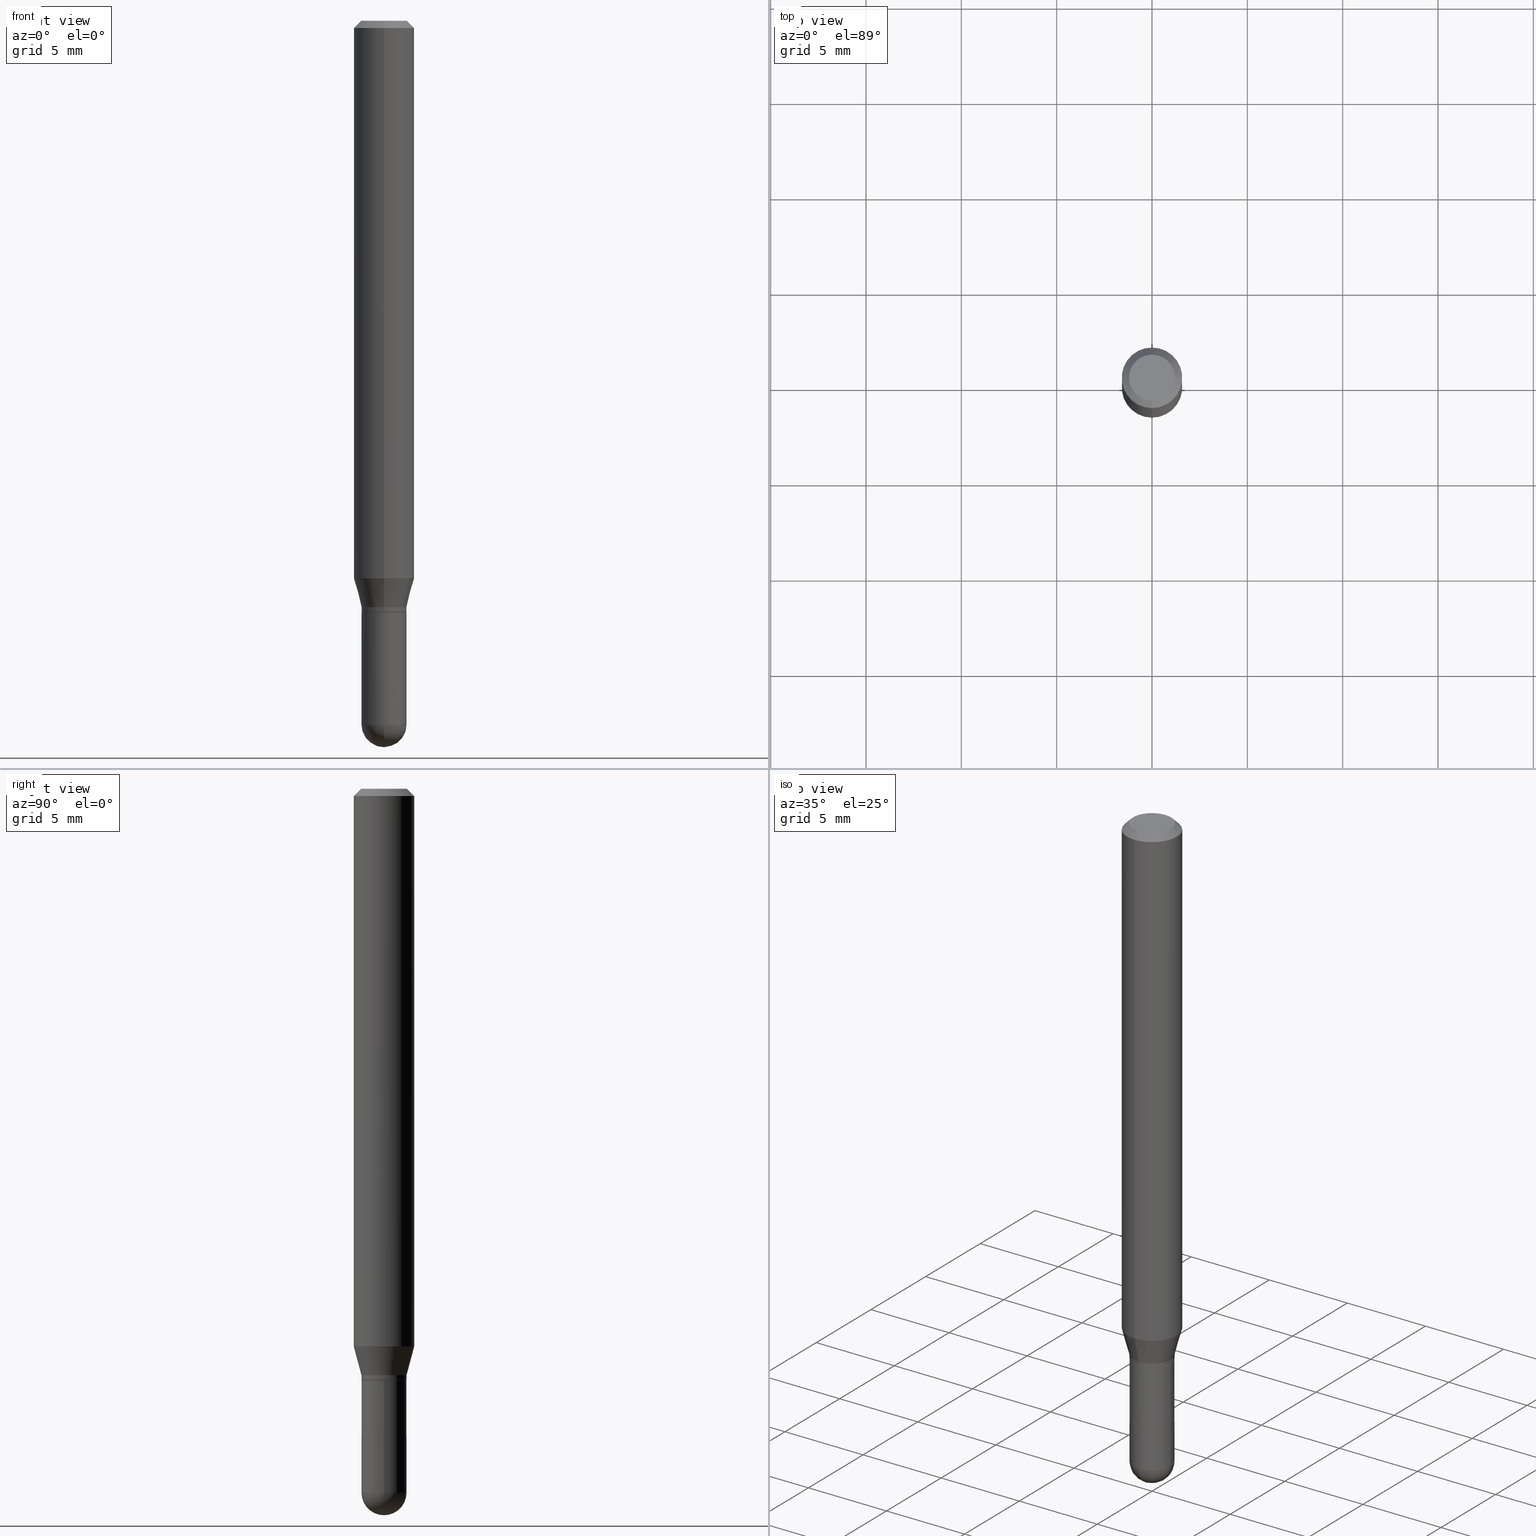
[diagram: canonical four-view strip — front | top / right | iso, engineering-drawing reading convention]
A machine part, canonical four-view strip (front | top / right | iso — engineering-drawing reading convention). The complete STEP part file that produces these views, byte-faithful:
ISO-10303-21;
HEADER;
FILE_DESCRIPTION (( 'STEP AP203' ),
    '1' );
FILE_NAME ('00945.STEP',
    '2024-03-07T19:06:51',
    ( '' ),
    ( '' ),
    'SwSTEP 2.0',
    'SolidWorks 2023',
    '' );
FILE_SCHEMA (( 'CONFIG_CONTROL_DESIGN' ));
ENDSEC;

DATA;
#1 = VERTEX_POINT ( 'NONE', #377 ) ;
#2 = PERSON_AND_ORGANIZATION ( #260, #57 ) ;
#3 = CARTESIAN_POINT ( 'NONE',  ( -3.773273898774340269E-16, -0.04749999999999999362, 1.569953458854816609E-16 ) ) ;
#4 = CC_DESIGN_APPROVAL ( #77, ( #387 ) ) ;
#5 = PERSON_AND_ORGANIZATION ( #260, #57 ) ;
#6 = CARTESIAN_POINT ( 'NONE',  ( 2.815349723061568800E-29, -4.019822575914692345E-15, -1.151287187078898322 ) ) ;
#7 = AXIS2_PLACEMENT_3D ( 'NONE', #32, #263, #426 ) ;
#8 = DIRECTION ( 'NONE',  ( 4.937700262164548042E-15, 0.7071067811865451302, -0.7071067811865499042 ) ) ;
#9 = EDGE_CURVE ( 'NONE', #224, #150, #467, .T. ) ;
#10 = CYLINDRICAL_SURFACE ( 'NONE', #390, 0.04649999999999999967 ) ;
#11 = AXIS2_PLACEMENT_3D ( 'NONE', #14, #457, #176 ) ;
#12 = DIRECTION ( 'NONE',  ( -6.982962677686265922E-15, -1.000000000000000000, 3.483106191921935554E-15 ) ) ;
#13 = CARTESIAN_POINT ( 'NONE',  ( 3.554488909790096218E-29, -5.074868126008512823E-15, -1.453500000000000236 ) ) ;
#14 = CARTESIAN_POINT ( 'NONE',  ( 2.165436816131405591E-46, -3.091861635838232018E-32, -8.855168650699427931E-18 ) ) ;
#15 = CIRCLE ( 'NONE', #378, 0.04650000000000006906 ) ;
#16 = LOCAL_TIME ( 14, 6, 51.00000000000000000, #46 ) ;
#17 = CARTESIAN_POINT ( 'NONE',  ( -3.247077645123822595E-16, -0.04650000000000429484, -1.210999999999999854 ) ) ;
#18 = VERTEX_POINT ( 'NONE', #185 ) ;
#19 = ORIENTED_EDGE ( 'NONE', *, *, #40, .F. ) ;
#20 = FACE_OUTER_BOUND ( 'NONE', #463, .T. ) ;
#21 = ORIENTED_EDGE ( 'NONE', *, *, #295, .F. ) ;
#22 = CC_DESIGN_PERSON_AND_ORGANIZATION_ASSIGNMENT ( #164, #323, ( #434 ) ) ;
#23 = ORIENTED_EDGE ( 'NONE', *, *, #40, .T. ) ;
#24 = AXIS2_PLACEMENT_3D ( 'NONE', #469, #113, #235 ) ;
#25 = AXIS2_PLACEMENT_3D ( 'NONE', #341, #386, #311 ) ;
#26 = AXIS2_PLACEMENT_3D ( 'NONE', #392, #273, #461 ) ;
#27 =( CONVERSION_BASED_UNIT ( 'INCH', #384 ) LENGTH_UNIT ( ) NAMED_UNIT ( #54 ) );
#28 = ORIENTED_EDGE ( 'NONE', *, *, #51, .F. ) ;
#29 = DIRECTION ( 'NONE',  ( -1.000000000000000000, 6.982962677686265922E-15, -4.883557194083111780E-29 ) ) ;
#30 = VERTEX_POINT ( 'NONE', #307 ) ;
#31 = SECURITY_CLASSIFICATION_LEVEL ( 'unclassified' ) ;
#32 = CARTESIAN_POINT ( 'NONE',  ( 3.550512386545411977E-29, -5.080562733624547023E-15, -1.453500000000000236 ) ) ;
#33 = CIRCLE ( 'NONE', #11, 0.04749999999999999362 ) ;
#34 = APPROVAL_STATUS ( 'not_yet_approved' ) ;
#35 = CARTESIAN_POINT ( 'NONE',  ( 2.815349723061568800E-29, -4.019822575914692345E-15, -1.151287187078898322 ) ) ;
#36 = CIRCLE ( 'NONE', #428, 0.04650000000000006212 ) ;
#37 = ORIENTED_EDGE ( 'NONE', *, *, #256, .F. ) ;
#38 = PERSON_AND_ORGANIZATION_ROLE ( 'classification_officer' ) ;
#39 = DIRECTION ( 'NONE',  ( -2.445468806185136597E-29, 3.491481338843145583E-15, 1.000000000000000000 ) ) ;
#40 = EDGE_CURVE ( 'NONE', #193, #150, #48, .T. ) ;
#41 = DATE_AND_TIME ( #194, #405 ) ;
#42 = AXIS2_PLACEMENT_3D ( 'NONE', #447, #444, #363 ) ;
#43 = DIRECTION ( 'NONE',  ( -6.982962677686265922E-15, -1.000000000000000000, 3.491589779709075635E-15 ) ) ;
#44 = EDGE_CURVE ( 'NONE', #427, #69, #216, .T. ) ;
#45 = AXIS2_PLACEMENT_3D ( 'NONE', #346, #337, #109 ) ;
#46 = COORDINATED_UNIVERSAL_TIME_OFFSET ( 5, 0, .BEHIND. ) ;
#47 = ADVANCED_FACE ( 'NONE', ( #475 ), #118, .F. ) ;
#48 = CIRCLE ( 'NONE', #196, 0.06250000000000000000 ) ;
#49 = CARTESIAN_POINT ( 'NONE',  ( 3.247077645124412269E-16, 0.04649999999999573919, -1.221000000000000307 ) ) ;
#50 = ORIENTED_EDGE ( 'NONE', *, *, #317, .T. ) ;
#51 = EDGE_CURVE ( 'NONE', #18, #389, #410, .T. ) ;
#52 = DIRECTION ( 'NONE',  ( 6.982962677686265922E-15, 1.000000000000000000, -3.483106191921935554E-15 ) ) ;
#53 = AXIS2_PLACEMENT_3D ( 'NONE', #251, #484, #205 ) ;
#54 = DIMENSIONAL_EXPONENTS ( 1.000000000000000000, 0.000000000000000000, 0.000000000000000000, 0.000000000000000000, 0.000000000000000000, 0.000000000000000000, 0.000000000000000000 ) ;
#55 = PRODUCT_DEFINITION_SHAPE ( 'NONE', 'NONE',  #387 ) ;
#56 = CARTESIAN_POINT ( 'NONE',  ( 2.165436816131405591E-46, -3.091861635838232018E-32, -8.855168650699427931E-18 ) ) ;
#57 = ORGANIZATION ( 'UNSPECIFIED', 'UNSPECIFIED', '' ) ;
#58 = CARTESIAN_POINT ( 'NONE',  ( -3.247077645124118911E-16, -0.04650000000000006906, 1.623589247564722643E-16 ) ) ;
#59 = CARTESIAN_POINT ( 'NONE',  ( 3.247077645124467489E-16, 0.04649999999999489958, -1.453500000000000458 ) ) ;
#60 = EDGE_CURVE ( 'NONE', #486, #236, #255, .T. ) ;
#61 = CARTESIAN_POINT ( 'NONE',  ( 3.304023721284766101E-16, 0.04649999999999584327, -1.211000000000000076 ) ) ;
#62 = AXIS2_PLACEMENT_3D ( 'NONE', #107, #189, #225 ) ;
#63 = EDGE_CURVE ( 'NONE', #425, #507, #36, .T. ) ;
#64 = CARTESIAN_POINT ( 'NONE',  ( 4.440892098500625669E-16, 0.06250000000000000000, -2.182243612318172272E-16 ) ) ;
#65 = SPHERICAL_SURFACE ( 'NONE', #276, 0.04649999999999995109 ) ;
#66 = VERTEX_POINT ( 'NONE', #324 ) ;
#67 = CARTESIAN_POINT ( 'NONE',  ( 2.984602256987651829E-29, -4.261485326134926891E-15, -1.220500000000000140 ) ) ;
#68 = ORIENTED_EDGE ( 'NONE', *, *, #382, .F. ) ;
#69 = VERTEX_POINT ( 'NONE', #408 ) ;
#70 = AXIS2_PLACEMENT_3D ( 'NONE', #411, #396, #52 ) ;
#71 = DIRECTION ( 'NONE',  ( 6.982962677686265922E-15, 1.000000000000000000, -3.483106191921935554E-15 ) ) ;
#72 = VERTEX_POINT ( 'NONE', #488 ) ;
#73 = VECTOR ( 'NONE', #76, 39.37007874015748143 ) ;
#74 = ORIENTED_EDGE ( 'NONE', *, *, #511, .F. ) ;
#75 = APPLICATION_CONTEXT ( 'configuration controlled 3d designs of mechanical parts and assemblies' ) ;
#76 = DIRECTION ( 'NONE',  ( -2.445393082333184386E-29, 3.491589779709075635E-15, 1.000000000000000000 ) ) ;
#77 = APPROVAL ( #274, 'UNSPECIFIED' ) ;
#78 = LINE ( 'NONE', #302, #253 ) ;
#79 = DIRECTION ( 'NONE',  ( -2.445468806185136597E-29, 3.491481338843145583E-15, 1.000000000000000000 ) ) ;
#80 = PERSON_AND_ORGANIZATION ( #260, #57 ) ;
#81 = ADVANCED_FACE ( 'NONE', ( #353 ), #318, .F. ) ;
#82 = DIRECTION ( 'NONE',  ( -2.445393082333184106E-29, 3.491589779709075635E-15, 1.000000000000000000 ) ) ;
#83 = ORIENTED_EDGE ( 'NONE', *, *, #256, .T. ) ;
#84 = DIRECTION ( 'NONE',  ( 0.000000000000000000, 0.000000000000000000, 1.000000000000000000 ) ) ;
#85 = CARTESIAN_POINT ( 'NONE',  ( 2.961371022705485983E-29, -4.228315223227690775E-15, -1.211000000000000076 ) ) ;
#86 = MECHANICAL_CONTEXT ( 'NONE', #75, 'mechanical' ) ;
#87 = ADVANCED_FACE ( 'NONE', ( #248 ), #10, .T. ) ;
#88 = CARTESIAN_POINT ( 'NONE',  ( 0.000000000000000000, 0.000000000000000000, 0.000000000000000000 ) ) ;
#89 = ORIENTED_EDGE ( 'NONE', *, *, #99, .F. ) ;
#90 = AXIS2_PLACEMENT_3D ( 'NONE', #495, #136, #364 ) ;
#91 = DIRECTION ( 'NONE',  ( -6.982962677686265922E-15, -1.000000000000000000, 4.370956789862821150E-15 ) ) ;
#92 = LOCAL_TIME ( 14, 6, 51.00000000000000000, #487 ) ;
#93 = DIRECTION ( 'NONE',  ( -2.445468806185136597E-29, 3.491481338843145583E-15, 1.000000000000000000 ) ) ;
#94 = ORIENTED_EDGE ( 'NONE', *, *, #44, .F. ) ;
#95 = LINE ( 'NONE', #64, #221 ) ;
#96 = CARTESIAN_POINT ( 'NONE',  ( 3.840629472727447874E-16, 0.04749999999999999362, -1.747056831868805136E-16 ) ) ;
#97 = AXIS2_PLACEMENT_3D ( 'NONE', #239, #84, #119 ) ;
#98 = LINE ( 'NONE', #366, #472 ) ;
#99 = EDGE_CURVE ( 'NONE', #226, #193, #128, .T. ) ;
#100 = FACE_OUTER_BOUND ( 'NONE', #173, .T. ) ;
#101 = EDGE_CURVE ( 'NONE', #18, #66, #283, .T. ) ;
#102 = DIRECTION ( 'NONE',  ( -2.445393082333184106E-29, 3.491589779709075635E-15, 1.000000000000000000 ) ) ;
#103 = AXIS2_PLACEMENT_3D ( 'NONE', #246, #360, #400 ) ;
#104 = CC_DESIGN_APPROVAL ( #198, ( #434 ) ) ;
#105 = ORIENTED_EDGE ( 'NONE', *, *, #192, .F. ) ;
#106 = CC_DESIGN_PERSON_AND_ORGANIZATION_ASSIGNMENT ( #2, #351, ( #434 ) ) ;
#107 = CARTESIAN_POINT ( 'NONE',  ( 0.000000000000000000, 0.000000000000000000, 0.000000000000000000 ) ) ;
#108 = ORIENTED_EDGE ( 'NONE', *, *, #295, .T. ) ;
#109 = DIRECTION ( 'NONE',  ( -6.982962677686266711E-15, -1.000000000000000000, 3.491589779709075635E-15 ) ) ;
#110 = ORIENTED_EDGE ( 'NONE', *, *, #376, .F. ) ;
#111 = ORIENTED_EDGE ( 'NONE', *, *, #328, .F. ) ;
#112 = AXIS2_PLACEMENT_3D ( 'NONE', #490, #93, #440 ) ;
#113 = DIRECTION ( 'NONE',  ( -1.000000000000000000, 7.105427357601001070E-15, -4.926315508542082329E-29 ) ) ;
#114 = ADVANCED_FACE ( 'NONE', ( #162 ), #126, .T. ) ;
#115 = ORIENTED_EDGE ( 'NONE', *, *, #63, .F. ) ;
#116 = ORIENTED_EDGE ( 'NONE', *, *, #135, .T. ) ;
#117 = CARTESIAN_POINT ( 'NONE',  ( 3.554488909790096218E-29, -5.074868126008512823E-15, -1.453500000000000236 ) ) ;
#118 = PLANE ( 'NONE',  #26 ) ;
#119 = DIRECTION ( 'NONE',  ( 1.000000000000000000, 0.000000000000000000, 0.000000000000000000 ) ) ;
#120 = CARTESIAN_POINT ( 'NONE',  ( -0.04649999999999999967, 3.304023721284465841E-16, -2.287304816968531530E-30 ) ) ;
#121 = COORDINATED_UNIVERSAL_TIME_OFFSET ( 5, 0, .BEHIND. ) ;
#122 = DIRECTION ( 'NONE',  ( -6.982962677686265922E-15, -1.000000000000000000, 3.491589779709075635E-15 ) ) ;
#123 = CONICAL_SURFACE ( 'NONE', #504, 0.04650000000000006906, 0.2617993877991501850 ) ;
#124 = EDGE_CURVE ( 'NONE', #30, #375, #15, .T. ) ;
#125 = ORIENTED_EDGE ( 'NONE', *, *, #376, .T. ) ;
#126 = CYLINDRICAL_SURFACE ( 'NONE', #220, 0.06250000000000000000 ) ;
#127 = DATE_AND_TIME ( #197, #92 ) ;
#128 = LINE ( 'NONE', #480, #430 ) ;
#129 = AXIS2_PLACEMENT_3D ( 'NONE', #49, #210, #313 ) ;
#130 = DIRECTION ( 'NONE',  ( -2.445393082333184106E-29, 3.491589779709075635E-15, 1.000000000000000000 ) ) ;
#131 = CIRCLE ( 'NONE', #24, 0.04649999999999995109 ) ;
#132 = DIRECTION ( 'NONE',  ( -2.445393082333184386E-29, 3.491589779709075635E-15, 1.000000000000000000 ) ) ;
#133 = ADVANCED_FACE ( 'NONE', ( #158 ), #202, .F. ) ;
#134 = CARTESIAN_POINT ( 'NONE',  ( 3.668089623499778454E-31, -5.237384669563616460E-17, -0.01500000000000000812 ) ) ;
#135 = EDGE_CURVE ( 'NONE', #69, #427, #159, .T. ) ;
#136 = DIRECTION ( 'NONE',  ( -2.445468806185136597E-29, 3.491481338843145583E-15, 1.000000000000000000 ) ) ;
#137 = ORIENTED_EDGE ( 'NONE', *, *, #325, .F. ) ;
#138 = ADVANCED_BREP_SHAPE_REPRESENTATION ( '00945', ( #404, #403, #97 ), #394 ) ;
#139 = DIRECTION ( 'NONE',  ( -2.445393082333184386E-29, 3.491589779709075635E-15, 1.000000000000000000 ) ) ;
#140 = DIRECTION ( 'NONE',  ( -6.982962677686266711E-15, -1.000000000000000000, 2.937470960929311090E-15 ) ) ;
#141 = PRODUCT ( '00945', '00945', '', ( #86 ) ) ;
#142 = DESIGN_CONTEXT ( 'detailed design', #319, 'design' ) ;
#143 = DIRECTION ( 'NONE',  ( -2.445393082333184106E-29, 3.491589779709075635E-15, 1.000000000000000000 ) ) ;
#144 = CC_DESIGN_PERSON_AND_ORGANIZATION_ASSIGNMENT ( #510, #450, ( #141 ) ) ;
#145 = ORIENTED_EDGE ( 'NONE', *, *, #212, .T. ) ;
#146 = CIRCLE ( 'NONE', #286, 0.04650000000000006906 ) ;
#147 = CARTESIAN_POINT ( 'NONE',  ( 2.985917412352052273E-29, -4.263098714727481320E-15, -1.221000000000000085 ) ) ;
#148 = ORIENTED_EDGE ( 'NONE', *, *, #228, .F. ) ;
#149 = CARTESIAN_POINT ( 'NONE',  ( 3.304023721284470278E-16, 0.04650000000000006906, -1.623589247564722643E-16 ) ) ;
#150 = VERTEX_POINT ( 'NONE', #477 ) ;
#151 = DIRECTION ( 'NONE',  ( 1.000000000000000000, -6.982962677686260400E-15, 0.000000000000000000 ) ) ;
#152 = ORIENTED_EDGE ( 'NONE', *, *, #409, .F. ) ;
#153 = CYLINDRICAL_SURFACE ( 'NONE', #45, 0.04650000000000006906 ) ;
#154 = VECTOR ( 'NONE', #219, 39.37007874015748143 ) ;
#155 = PERSON_AND_ORGANIZATION ( #260, #57 ) ;
#156 = EDGE_LOOP ( 'NONE', ( #464, #188, #28, #148 ) ) ;
#157 = VECTOR ( 'NONE', #441, 39.37007874015748143 ) ;
#158 = FACE_OUTER_BOUND ( 'NONE', #470, .T. ) ;
#159 = CIRCLE ( 'NONE', #42, 0.04599999999999999922 ) ;
#160 = ORIENTED_EDGE ( 'NONE', *, *, #165, .T. ) ;
#161 = DATE_TIME_ROLE ( 'creation_date' ) ;
#162 = FACE_OUTER_BOUND ( 'NONE', #347, .T. ) ;
#163 = CIRCLE ( 'NONE', #460, 0.04649999999999999967 ) ;
#164 = PERSON_AND_ORGANIZATION ( #260, #57 ) ;
#165 = EDGE_CURVE ( 'NONE', #262, #72, #402, .T. ) ;
#166 = CARTESIAN_POINT ( 'NONE',  ( 0.000000000000000000, 0.000000000000000000, 0.000000000000000000 ) ) ;
#167 = CALENDAR_DATE ( 2024, 7, 3 ) ;
#168 = DIRECTION ( 'NONE',  ( -6.982962677686265922E-15, -1.000000000000000000, 4.370956789862821150E-15 ) ) ;
#169 = ORIENTED_EDGE ( 'NONE', *, *, #308, .T. ) ;
#170 = UNCERTAINTY_MEASURE_WITH_UNIT (LENGTH_MEASURE( 1.000000000000000082E-05 ), #27, 'distance_accuracy_value', 'NONE');
#171 = FACE_OUTER_BOUND ( 'NONE', #338, .T. ) ;
#172 = EDGE_CURVE ( 'NONE', #1, #459, #326, .T. ) ;
#173 = EDGE_LOOP ( 'NONE', ( #500, #304, #466, #111 ) ) ;
#174 = DIRECTION ( 'NONE',  ( 6.982962677686265922E-15, 1.000000000000000000, -5.874941921858636379E-15 ) ) ;
#175 = DIRECTION ( 'NONE',  ( 1.000000000000000000, -6.982962677686260400E-15, 0.000000000000000000 ) ) ;
#176 = DIRECTION ( 'NONE',  ( -6.982962677686266711E-15, -1.000000000000000000, 3.491589779709075635E-15 ) ) ;
#177 = CIRCLE ( 'NONE', #468, 0.04649999999999999967 ) ;
#178 = LOCAL_TIME ( 14, 6, 51.00000000000000000, #439 ) ;
#179 = DIRECTION ( 'NONE',  ( -1.807323732225329350E-15, -0.2588190451025180194, 0.9659258262890689783 ) ) ;
#180 = EDGE_CURVE ( 'NONE', #459, #1, #491, .T. ) ;
#181 =( NAMED_UNIT ( * ) SI_UNIT ( $, .STERADIAN. ) SOLID_ANGLE_UNIT ( ) );
#182 = ORIENTED_EDGE ( 'NONE', *, *, #60, .T. ) ;
#183 = CARTESIAN_POINT ( 'NONE',  ( 3.550512386545411977E-29, -5.080562733624547023E-15, -1.453500000000000236 ) ) ;
#184 = ORIENTED_EDGE ( 'NONE', *, *, #135, .F. ) ;
#185 = CARTESIAN_POINT ( 'NONE',  ( -0.04649999999999999967, -4.338581048239549797E-15, -1.453500000000000236 ) ) ;
#186 = CIRCLE ( 'NONE', #342, 0.04749999999999999362 ) ;
#187 = APPLICATION_PROTOCOL_DEFINITION ( 'international standard', 'config_control_design', 1994, #75 ) ;
#188 = ORIENTED_EDGE ( 'NONE', *, *, #478, .T. ) ;
#189 = DIRECTION ( 'NONE',  ( -2.445393082333184106E-29, 3.491589779709075635E-15, 1.000000000000000000 ) ) ;
#190 = ORIENTED_EDGE ( 'NONE', *, *, #9, .T. ) ;
#191 = CARTESIAN_POINT ( 'NONE',  ( 2.961371022705485983E-29, -4.228315223227690775E-15, -1.211000000000000076 ) ) ;
#192 = EDGE_CURVE ( 'NONE', #507, #425, #393, .T. ) ;
#193 = VERTEX_POINT ( 'NONE', #285 ) ;
#194 = CALENDAR_DATE ( 2024, 7, 3 ) ;
#195 = VECTOR ( 'NONE', #132, 39.37007874015748143 ) ;
#196 = AXIS2_PLACEMENT_3D ( 'NONE', #233, #381, #345 ) ;
#197 = CALENDAR_DATE ( 2024, 7, 3 ) ;
#198 = APPROVAL ( #34, 'UNSPECIFIED' ) ;
#199 = DIRECTION ( 'NONE',  ( -2.445393082333184106E-29, 3.491589779709075635E-15, 1.000000000000000000 ) ) ;
#200 = EDGE_LOOP ( 'NONE', ( #431, #190, #125, #89 ) ) ;
#201 = APPROVAL_DATE_TIME ( #127, #348 ) ;
#202 = PLANE ( 'NONE',  #129 ) ;
#203 = ADVANCED_FACE ( 'NONE', ( #275 ), #451, .T. ) ;
#204 = APPROVAL_DATE_TIME ( #41, #198 ) ;
#205 = DIRECTION ( 'NONE',  ( -6.982962677686265922E-15, -1.000000000000000000, 3.491589779709075635E-15 ) ) ;
#206 = CIRCLE ( 'NONE', #372, 0.04649999999999999967 ) ;
#207 = VECTOR ( 'NONE', #139, 39.37007874015748143 ) ;
#208 = ORIENTED_EDGE ( 'NONE', *, *, #124, .T. ) ;
#209 = DATE_AND_TIME ( #479, #178 ) ;
#210 = DIRECTION ( 'NONE',  ( 2.438088387897960049E-29, -3.491481338843145188E-15, -1.000000000000000000 ) ) ;
#211 = DIRECTION ( 'NONE',  ( -6.982962677686266711E-15, -1.000000000000000000, 2.937470960929311090E-15 ) ) ;
#212 = EDGE_CURVE ( 'NONE', #72, #66, #237, .T. ) ;
#213 = CARTESIAN_POINT ( 'NONE',  ( -3.304023721284108388E-16, -0.04650000000000505812, -1.453500000000000014 ) ) ;
#214 = ADVANCED_FACE ( 'NONE', ( #356 ), #290, .T. ) ;
#215 = ORIENTED_EDGE ( 'NONE', *, *, #228, .T. ) ;
#216 = CIRCLE ( 'NONE', #25, 0.04599999999999999922 ) ;
#217 = LINE ( 'NONE', #149, #73 ) ;
#218 = FACE_OUTER_BOUND ( 'NONE', #508, .T. ) ;
#219 = DIRECTION ( 'NONE',  ( 1.839019923739599526E-15, 0.2588190451025248473, 0.9659258262890670910 ) ) ;
#220 = AXIS2_PLACEMENT_3D ( 'NONE', #280, #512, #122 ) ;
#221 = VECTOR ( 'NONE', #413, 39.37007874015748143 ) ;
#222 = CARTESIAN_POINT ( 'NONE',  ( 2.985824953528818158E-29, -4.263231121024781839E-15, -1.221000000000000085 ) ) ;
#223 = ORIENTED_EDGE ( 'NONE', *, *, #478, .F. ) ;
#224 = VERTEX_POINT ( 'NONE', #3 ) ;
#225 = DIRECTION ( 'NONE',  ( -6.982962677686266711E-15, -1.000000000000000000, 3.491589779709075635E-15 ) ) ;
#226 = VERTEX_POINT ( 'NONE', #96 ) ;
#227 = AXIS2_PLACEMENT_3D ( 'NONE', #166, #362, #43 ) ;
#228 = EDGE_CURVE ( 'NONE', #236, #18, #177, .T. ) ;
#229 = APPROVAL_PERSON_ORGANIZATION ( #80, #77, #284 ) ;
#230 = CARTESIAN_POINT ( 'NONE',  ( 3.668089623499778454E-31, -5.237384669563616460E-17, -0.01500000000000000812 ) ) ;
#231 = ADVANCED_FACE ( 'NONE', ( #218 ), #333, .T. ) ;
#232 = ORIENTED_EDGE ( 'NONE', *, *, #101, .T. ) ;
#233 = CARTESIAN_POINT ( 'NONE',  ( 3.668089623499778454E-31, -5.237384669563616460E-17, -0.01500000000000000812 ) ) ;
#234 = CARTESIAN_POINT ( 'NONE',  ( 2.961371022705485983E-29, -4.228315223227690775E-15, -1.211000000000000076 ) ) ;
#235 = DIRECTION ( 'NONE',  ( -7.105427357601001070E-15, -1.000000000000000000, 0.000000000000000000 ) ) ;
#236 = VERTEX_POINT ( 'NONE', #59 ) ;
#237 = CIRCLE ( 'NONE', #112, 0.04649999999999999967 ) ;
#238 = ADVANCED_FACE ( 'NONE', ( #287 ), #422, .T. ) ;
#239 = CARTESIAN_POINT ( 'NONE',  ( 0.000000000000000000, 0.000000000000000000, 0.000000000000000000 ) ) ;
#240 = SECURITY_CLASSIFICATION ( '', '', #31 ) ;
#241 = CC_DESIGN_SECURITY_CLASSIFICATION ( #240, ( #434 ) ) ;
#242 = CARTESIAN_POINT ( 'NONE',  ( 0.04649999999999999967, -3.247077645124114474E-16, 2.267422200745110326E-30 ) ) ;
#243 = EDGE_LOOP ( 'NONE', ( #137, #208, #355, #332 ) ) ;
#244 = DIRECTION ( 'NONE',  ( -6.982962677686265922E-15, -1.000000000000000000, 2.937470960929311484E-15 ) ) ;
#245 = COORDINATED_UNIVERSAL_TIME_OFFSET ( 5, 0, .BEHIND. ) ;
#246 = CARTESIAN_POINT ( 'NONE',  ( 2.984602256987651829E-29, -4.261485326134926891E-15, -1.220500000000000140 ) ) ;
#247 = EDGE_LOOP ( 'NONE', ( #482, #303 ) ) ;
#248 = FACE_OUTER_BOUND ( 'NONE', #322, .T. ) ;
#249 = VECTOR ( 'NONE', #179, 39.37007874015749564 ) ;
#250 = ADVANCED_FACE ( 'NONE', ( #171 ), #329, .T. ) ;
#251 = CARTESIAN_POINT ( 'NONE',  ( 2.985824953528818158E-29, -4.263231121024781839E-15, -1.221000000000000085 ) ) ;
#252 = DIRECTION ( 'NONE',  ( -2.445393082333184106E-29, 3.491589779709075635E-15, 1.000000000000000000 ) ) ;
#253 = VECTOR ( 'NONE', #465, 39.37007874015748143 ) ;
#254 = DIRECTION ( 'NONE',  ( -4.937700262164674260E-15, -0.7071067811865632269, 0.7071067811865319186 ) ) ;
#255 = CIRCLE ( 'NONE', #7, 0.04649999999999995109 ) ;
#256 = EDGE_CURVE ( 'NONE', #69, #507, #98, .T. ) ;
#257 = DIRECTION ( 'NONE',  ( -2.445393082333184106E-29, 3.491589779709075635E-15, 1.000000000000000000 ) ) ;
#258 = DIRECTION ( 'NONE',  ( -6.982962677686265133E-15, -1.000000000000000000, 2.969399993113329585E-15 ) ) ;
#259 = APPROVAL_PERSON_ORGANIZATION ( #489, #198, #443 ) ;
#260 = PERSON ( 'UNSPECIFIED', 'UNSPECIFIED', 'UNSPECIFIED', ('UNSPECIFIED'), ('UNSPECIFIED'), ('UNSPECIFIED') ) ;
#261 = CYLINDRICAL_SURFACE ( 'NONE', #62, 0.04650000000000006906 ) ;
#262 = VERTEX_POINT ( 'NONE', #419 ) ;
#263 = DIRECTION ( 'NONE',  ( 1.000000000000000000, -6.982962677686265922E-15, 4.883557194083112340E-29 ) ) ;
#264 = EDGE_LOOP ( 'NONE', ( #445, #297, #83, #115 ) ) ;
#265 = CC_DESIGN_DATE_AND_TIME_ASSIGNMENT ( #398, #161, ( #387 ) ) ;
#266 = CARTESIAN_POINT ( 'NONE',  ( 3.666214947655362494E-29, -5.240069312072735277E-15, -1.500000000000000222 ) ) ;
#267 = ORIENTED_EDGE ( 'NONE', *, *, #511, .T. ) ;
#268 = ORIENTED_EDGE ( 'NONE', *, *, #165, .F. ) ;
#269 = AXIS2_PLACEMENT_3D ( 'NONE', #458, #102, #258 ) ;
#270 = DIRECTION ( 'NONE',  ( 2.445393082333184106E-29, -3.491589779709075635E-15, -1.000000000000000000 ) ) ;
#271 = ORIENTED_EDGE ( 'NONE', *, *, #409, .T. ) ;
#272 = DIRECTION ( 'NONE',  ( 1.000000000000000000, -6.982962677686260400E-15, 0.000000000000000000 ) ) ;
#273 = DIRECTION ( 'NONE',  ( 2.445393082333183826E-29, -3.491589779709075635E-15, -1.000000000000000000 ) ) ;
#274 = APPROVAL_STATUS ( 'not_yet_approved' ) ;
#275 = FACE_OUTER_BOUND ( 'NONE', #361, .T. ) ;
#276 = AXIS2_PLACEMENT_3D ( 'NONE', #183, #29, #502 ) ;
#277 = DIRECTION ( 'NONE',  ( -2.445468806185136877E-29, 3.491481338843145188E-15, 1.000000000000000000 ) ) ;
#278 = ORIENTED_EDGE ( 'NONE', *, *, #485, .F. ) ;
#279 = CALENDAR_DATE ( 2024, 7, 3 ) ;
#280 = CARTESIAN_POINT ( 'NONE',  ( 0.000000000000000000, 0.000000000000000000, 0.000000000000000000 ) ) ;
#281 = ORIENTED_EDGE ( 'NONE', *, *, #172, .T. ) ;
#282 = CC_DESIGN_PERSON_AND_ORGANIZATION_ASSIGNMENT ( #312, #38, ( #240 ) ) ;
#283 = LINE ( 'NONE', #120, #157 ) ;
#284 = APPROVAL_ROLE ( '' ) ;
#285 = CARTESIAN_POINT ( 'NONE',  ( 4.440892098500909166E-16, 0.06249999999999995143, -0.01500000000000022669 ) ) ;
#286 = AXIS2_PLACEMENT_3D ( 'NONE', #234, #143, #432 ) ;
#287 = FACE_OUTER_BOUND ( 'NONE', #264, .T. ) ;
#288 = CC_DESIGN_PERSON_AND_ORGANIZATION_ASSIGNMENT ( #155, #395, ( #387 ) ) ;
#289 = FACE_OUTER_BOUND ( 'NONE', #156, .T. ) ;
#290 = CONICAL_SURFACE ( 'NONE', #70, 0.06250000000000000000, 0.7853981633974483900 ) ;
#291 = LOCAL_TIME ( 14, 6, 51.00000000000000000, #245 ) ;
#292 = PRODUCT_RELATED_PRODUCT_CATEGORY ( 'detail', '', ( #141 ) ) ;
#293 = DIRECTION ( 'NONE',  ( -2.445468806185136597E-29, 3.491481338843145583E-15, 1.000000000000000000 ) ) ;
#294 = DIRECTION ( 'NONE',  ( -1.000000000000000000, 6.982962677686265922E-15, -4.883557194083111780E-29 ) ) ;
#295 = EDGE_CURVE ( 'NONE', #262, #236, #206, .T. ) ;
#296 = DIRECTION ( 'NONE',  ( -2.445393082333184106E-29, 3.491589779709075635E-15, 1.000000000000000000 ) ) ;
#297 = ORIENTED_EDGE ( 'NONE', *, *, #44, .T. ) ;
#298 = CIRCLE ( 'NONE', #350, 0.04649999999999999967 ) ;
#299 = EDGE_LOOP ( 'NONE', ( #442, #406, #380, #23 ) ) ;
#300 = DIRECTION ( 'NONE',  ( -4.851104656540964275E-15, -0.7071067811865500152, -0.7071067811865450192 ) ) ;
#301 = EDGE_CURVE ( 'NONE', #226, #224, #33, .T. ) ;
#302 = CARTESIAN_POINT ( 'NONE',  ( 3.268496584496758595E-16, 0.04599999999999573874, -1.221000000000000307 ) ) ;
#303 = ORIENTED_EDGE ( 'NONE', *, *, #354, .T. ) ;
#304 = ORIENTED_EDGE ( 'NONE', *, *, #325, .T. ) ;
#305 =( NAMED_UNIT ( * ) PLANE_ANGLE_UNIT ( ) SI_UNIT ( $, .RADIAN. ) );
#306 = ORIENTED_EDGE ( 'NONE', *, *, #51, .T. ) ;
#307 = CARTESIAN_POINT ( 'NONE',  ( 3.872457909892837387E-16, 0.04649999999999584327, -1.211000000000000076 ) ) ;
#308 = EDGE_CURVE ( 'NONE', #507, #375, #334, .T. ) ;
#309 = APPROVAL_PERSON_ORGANIZATION ( #5, #348, #476 ) ;
#310 =( LENGTH_UNIT ( ) NAMED_UNIT ( * ) SI_UNIT ( $, .METRE. ) );
#311 = DIRECTION ( 'NONE',  ( -6.982962677686265133E-15, -1.000000000000000000, 2.969399993113329585E-15 ) ) ;
#312 = PERSON_AND_ORGANIZATION ( #260, #57 ) ;
#313 = DIRECTION ( 'NONE',  ( -1.000000000000000000, 6.982962677686265922E-15, -4.876176775795935793E-29 ) ) ;
#314 = ADVANCED_FACE ( 'NONE', ( #100 ), #123, .T. ) ;
#315 = DIRECTION ( 'NONE',  ( -2.445393082333184106E-29, 3.491589779709075635E-15, 1.000000000000000000 ) ) ;
#316 = ORIENTED_EDGE ( 'NONE', *, *, #192, .T. ) ;
#317 = EDGE_CURVE ( 'NONE', #459, #150, #420, .T. ) ;
#318 = PLANE ( 'NONE',  #53 ) ;
#319 = APPLICATION_CONTEXT ( 'configuration controlled 3d designs of mechanical parts and assemblies' ) ;
#320 = APPROVAL_STATUS ( 'not_yet_approved' ) ;
#321 = DIRECTION ( 'NONE',  ( 1.000000000000000000, -6.982962677686267499E-15, 4.876176775795936353E-29 ) ) ;
#322 = EDGE_LOOP ( 'NONE', ( #503, #306, #433, #160, #74 ) ) ;
#323 = PERSON_AND_ORGANIZATION_ROLE ( 'design_supplier' ) ;
#324 = CARTESIAN_POINT ( 'NONE',  ( -0.04649999999999999967, -4.338581048239549797E-15, -1.221000000000000085 ) ) ;
#325 = EDGE_CURVE ( 'NONE', #30, #1, #493, .T. ) ;
#326 = CIRCLE ( 'NONE', #339, 0.06250000000000000000 ) ;
#327 = ORIENTED_EDGE ( 'NONE', *, *, #63, .T. ) ;
#328 = EDGE_CURVE ( 'NONE', #375, #459, #371, .T. ) ;
#329 = SPHERICAL_SURFACE ( 'NONE', #481, 0.04649999999999995109 ) ;
#330 = AXIS2_PLACEMENT_3D ( 'NONE', #230, #270, #71 ) ;
#331 = CARTESIAN_POINT ( 'NONE',  ( 2.961371022705485983E-29, -4.228315223227690775E-15, -1.211000000000000076 ) ) ;
#332 = ORIENTED_EDGE ( 'NONE', *, *, #172, .F. ) ;
#333 = CYLINDRICAL_SURFACE ( 'NONE', #90, 0.04649999999999999967 ) ;
#334 = LINE ( 'NONE', #58, #207 ) ;
#335 = AXIS2_PLACEMENT_3D ( 'NONE', #222, #374, #456 ) ;
#336 = FACE_OUTER_BOUND ( 'NONE', #397, .T. ) ;
#337 = DIRECTION ( 'NONE',  ( -2.445393082333184106E-29, 3.491589779709075635E-15, 1.000000000000000000 ) ) ;
#338 = EDGE_LOOP ( 'NONE', ( #223, #182, #21, #278 ) ) ;
#339 = AXIS2_PLACEMENT_3D ( 'NONE', #35, #199, #91 ) ;
#340 = DIRECTION ( 'NONE',  ( -2.445468806185136597E-29, 3.491481338843145583E-15, 1.000000000000000000 ) ) ;
#341 = CARTESIAN_POINT ( 'NONE',  ( 2.985824953528818158E-29, -4.263231121024781839E-15, -1.221000000000000085 ) ) ;
#342 = AXIS2_PLACEMENT_3D ( 'NONE', #56, #416, #453 ) ;
#343 = CARTESIAN_POINT ( 'NONE',  ( 3.304023721284766101E-16, 0.04649999999999577388, -1.220500000000000362 ) ) ;
#344 = ORIENTED_EDGE ( 'NONE', *, *, #414, .F. ) ;
#345 = DIRECTION ( 'NONE',  ( -6.982962677686265922E-15, -1.000000000000000000, 3.483106191921935554E-15 ) ) ;
#346 = CARTESIAN_POINT ( 'NONE',  ( 0.000000000000000000, 0.000000000000000000, 0.000000000000000000 ) ) ;
#347 = EDGE_LOOP ( 'NONE', ( #68, #281, #50, #19 ) ) ;
#348 = APPROVAL ( #320, 'UNSPECIFIED' ) ;
#349 = VECTOR ( 'NONE', #277, 39.37007874015748143 ) ;
#350 = AXIS2_PLACEMENT_3D ( 'NONE', #117, #340, #272 ) ;
#351 = PERSON_AND_ORGANIZATION_ROLE ( 'creator' ) ;
#352 = SHAPE_DEFINITION_REPRESENTATION ( #55, #138 ) ;
#353 = FACE_OUTER_BOUND ( 'NONE', #494, .T. ) ;
#354 = EDGE_CURVE ( 'NONE', #224, #226, #186, .T. ) ;
#355 = ORIENTED_EDGE ( 'NONE', *, *, #328, .T. ) ;
#356 = FACE_OUTER_BOUND ( 'NONE', #200, .T. ) ;
#357 = EDGE_LOOP ( 'NONE', ( #152, #327, #169, #449 ) ) ;
#358 = DATE_TIME_ROLE ( 'classification_date' ) ;
#359 = CONICAL_SURFACE ( 'NONE', #330, 0.06250000000000000000, 0.7853981633974483900 ) ;
#360 = DIRECTION ( 'NONE',  ( -2.445393082333184106E-29, 3.491589779709075635E-15, 1.000000000000000000 ) ) ;
#361 = EDGE_LOOP ( 'NONE', ( #415, #367, #110, #385 ) ) ;
#362 = DIRECTION ( 'NONE',  ( -2.445393082333184106E-29, 3.491589779709075635E-15, 1.000000000000000000 ) ) ;
#363 = DIRECTION ( 'NONE',  ( -6.982962677686265133E-15, -1.000000000000000000, 2.969399993113329585E-15 ) ) ;
#364 = DIRECTION ( 'NONE',  ( 1.000000000000000000, -6.982962677686267499E-15, 4.876176775795936353E-29 ) ) ;
#365 = AXIS2_PLACEMENT_3D ( 'NONE', #134, #252, #12 ) ;
#366 = CARTESIAN_POINT ( 'NONE',  ( -3.212162831735383649E-16, -0.04600000000000425970, -1.221000000000000085 ) ) ;
#367 = ORIENTED_EDGE ( 'NONE', *, *, #382, .T. ) ;
#368 = DIRECTION ( 'NONE',  ( 1.000000000000000000, -6.982962677686260400E-15, 0.000000000000000000 ) ) ;
#369 = CC_DESIGN_DATE_AND_TIME_ASSIGNMENT ( #209, #358, ( #240 ) ) ;
#370 = ADVANCED_FACE ( 'NONE', ( #336 ), #448, .T. ) ;
#371 = LINE ( 'NONE', #17, #249 ) ;
#372 = AXIS2_PLACEMENT_3D ( 'NONE', #492, #454, #368 ) ;
#373 = VECTOR ( 'NONE', #300, 39.37007874015748143 ) ;
#374 = DIRECTION ( 'NONE',  ( -2.445393082333184106E-29, 3.491589779709075635E-15, 1.000000000000000000 ) ) ;
#375 = VERTEX_POINT ( 'NONE', #421 ) ;
#376 = EDGE_CURVE ( 'NONE', #150, #193, #498, .T. ) ;
#377 = CARTESIAN_POINT ( 'NONE',  ( 4.440892098500906207E-16, 0.06249999999999597544, -1.151287187078898766 ) ) ;
#378 = AXIS2_PLACEMENT_3D ( 'NONE', #85, #130, #211 ) ;
#379 = CARTESIAN_POINT ( 'NONE',  ( -4.364351673553635169E-16, -0.06250000000000402456, -1.151287187078898100 ) ) ;
#380 = ORIENTED_EDGE ( 'NONE', *, *, #99, .T. ) ;
#381 = DIRECTION ( 'NONE',  ( -2.445393082333184106E-29, 3.491589779709075635E-15, 1.000000000000000000 ) ) ;
#382 = EDGE_CURVE ( 'NONE', #1, #193, #95, .T. ) ;
#383 = CLOSED_SHELL ( 'NONE', ( #452, #370, #214, #203, #314, #436, #114, #501, #47, #81, #238, #446 ) ) ;
#384 = LENGTH_MEASURE_WITH_UNIT ( LENGTH_MEASURE( 0.02539999999999999897 ), #310 );
#385 = ORIENTED_EDGE ( 'NONE', *, *, #317, .F. ) ;
#386 = DIRECTION ( 'NONE',  ( -2.445393082333184106E-29, 3.491589779709075635E-15, 1.000000000000000000 ) ) ;
#387 = PRODUCT_DEFINITION ( 'UNKNOWN', '', #434, #142 ) ;
#388 = DIRECTION ( 'NONE',  ( -2.445468806185136597E-29, 3.491481338843145583E-15, 1.000000000000000000 ) ) ;
#389 = VERTEX_POINT ( 'NONE', #213 ) ;
#390 = AXIS2_PLACEMENT_3D ( 'NONE', #88, #39, #321 ) ;
#391 = APPROVAL_DATE_TIME ( #483, #77 ) ;
#392 = CARTESIAN_POINT ( 'NONE',  ( 3.316907271900976096E-16, 0.04749999999999999362, -1.702780988615308066E-16 ) ) ;
#393 = CIRCLE ( 'NONE', #103, 0.04650000000000006212 ) ;
#394 =( GEOMETRIC_REPRESENTATION_CONTEXT ( 3 ) GLOBAL_UNCERTAINTY_ASSIGNED_CONTEXT ( ( #170 ) ) GLOBAL_UNIT_ASSIGNED_CONTEXT ( ( #27, #305, #181 ) ) REPRESENTATION_CONTEXT ( 'NONE', 'WORKASPACE' ) );
#395 = PERSON_AND_ORGANIZATION_ROLE ( 'creator' ) ;
#396 = DIRECTION ( 'NONE',  ( 2.445393082333184106E-29, -3.491589779709075635E-15, -1.000000000000000000 ) ) ;
#397 = EDGE_LOOP ( 'NONE', ( #116, #509, #105, #37 ) ) ;
#398 = DATE_AND_TIME ( #279, #291 ) ;
#399 = ADVANCED_FACE ( 'NONE', ( #289 ), #65, .T. ) ;
#400 = DIRECTION ( 'NONE',  ( -6.982962677686265922E-15, -1.000000000000000000, 2.937470960929311484E-15 ) ) ;
#401 = APPLICATION_PROTOCOL_DEFINITION ( 'international standard', 'config_control_design', 1994, #319 ) ;
#402 = LINE ( 'NONE', #242, #349 ) ;
#403 = MANIFOLD_SOLID_BREP ( 'Body-Move/Copy2[2]', #383 ) ;
#404 = MANIFOLD_SOLID_BREP ( 'Body-Move/Copy2[1]', #418 ) ;
#405 = LOCAL_TIME ( 14, 6, 51.00000000000000000, #121 ) ;
#406 = ORIENTED_EDGE ( 'NONE', *, *, #301, .F. ) ;
#407 = CC_DESIGN_APPROVAL ( #348, ( #240 ) ) ;
#408 = CARTESIAN_POINT ( 'NONE',  ( -3.212162831735383649E-16, -0.04600000000000425970, -1.221000000000000085 ) ) ;
#409 = EDGE_CURVE ( 'NONE', #425, #30, #217, .T. ) ;
#410 = CIRCLE ( 'NONE', #423, 0.04649999999999999967 ) ;
#411 = CARTESIAN_POINT ( 'NONE',  ( 3.668089623499778454E-31, -5.237384669563616460E-17, -0.01500000000000000812 ) ) ;
#412 = ORIENTED_EDGE ( 'NONE', *, *, #212, .F. ) ;
#413 = DIRECTION ( 'NONE',  ( -2.445393082333184386E-29, 3.491589779709075635E-15, 1.000000000000000000 ) ) ;
#414 = EDGE_CURVE ( 'NONE', #375, #30, #146, .T. ) ;
#415 = ORIENTED_EDGE ( 'NONE', *, *, #180, .T. ) ;
#416 = DIRECTION ( 'NONE',  ( -2.445393082333184106E-29, 3.491589779709075635E-15, 1.000000000000000000 ) ) ;
#417 = CONICAL_SURFACE ( 'NONE', #496, 0.04650000000000006906, 0.2617993877991501850 ) ;
#418 = CLOSED_SHELL ( 'NONE', ( #231, #399, #133, #250, #87 ) ) ;
#419 = CARTESIAN_POINT ( 'NONE',  ( 0.04649999999999999967, -4.993691184880407779E-15, -1.453500000000000236 ) ) ;
#420 = LINE ( 'NONE', #499, #195 ) ;
#421 = CARTESIAN_POINT ( 'NONE',  ( -3.247077645123822595E-16, -0.04650000000000429484, -1.210999999999999854 ) ) ;
#422 = CONICAL_SURFACE ( 'NONE', #335, 0.04599999999999999922, 0.7853981633974739252 ) ;
#423 = AXIS2_PLACEMENT_3D ( 'NONE', #438, #79, #151 ) ;
#424 = DIRECTION ( 'NONE',  ( 1.000000000000000000, -6.982962677686260400E-15, 0.000000000000000000 ) ) ;
#425 = VERTEX_POINT ( 'NONE', #343 ) ;
#426 = DIRECTION ( 'NONE',  ( 6.982962677686265133E-15, 1.000000000000000000, 0.000000000000000000 ) ) ;
#427 = VERTEX_POINT ( 'NONE', #474 ) ;
#428 = AXIS2_PLACEMENT_3D ( 'NONE', #67, #82, #244 ) ;
#429 = FACE_OUTER_BOUND ( 'NONE', #243, .T. ) ;
#430 = VECTOR ( 'NONE', #8, 39.37007874015748143 ) ;
#431 = ORIENTED_EDGE ( 'NONE', *, *, #354, .F. ) ;
#432 = DIRECTION ( 'NONE',  ( -6.982962677686266711E-15, -1.000000000000000000, 2.937470960929311090E-15 ) ) ;
#433 = ORIENTED_EDGE ( 'NONE', *, *, #485, .T. ) ;
#434 = PRODUCT_DEFINITION_FORMATION_WITH_SPECIFIED_SOURCE ( 'ANY', '', #141, .NOT_KNOWN. ) ;
#435 = FACE_OUTER_BOUND ( 'NONE', #357, .T. ) ;
#436 = ADVANCED_FACE ( 'NONE', ( #429 ), #417, .T. ) ;
#437 = CARTESIAN_POINT ( 'NONE',  ( -3.247077645123820623E-16, -0.04650000000000435035, -1.220499999999999918 ) ) ;
#438 = CARTESIAN_POINT ( 'NONE',  ( 3.554488909790096218E-29, -5.074868126008512823E-15, -1.453500000000000236 ) ) ;
#439 = COORDINATED_UNIVERSAL_TIME_OFFSET ( 5, 0, .BEHIND. ) ;
#440 = DIRECTION ( 'NONE',  ( 1.000000000000000000, -6.982962677686260400E-15, 0.000000000000000000 ) ) ;
#441 = DIRECTION ( 'NONE',  ( -2.445468806185136877E-29, 3.491481338843145188E-15, 1.000000000000000000 ) ) ;
#442 = ORIENTED_EDGE ( 'NONE', *, *, #9, .F. ) ;
#443 = APPROVAL_ROLE ( '' ) ;
#444 = DIRECTION ( 'NONE',  ( -2.445393082333184106E-29, 3.491589779709075635E-15, 1.000000000000000000 ) ) ;
#445 = ORIENTED_EDGE ( 'NONE', *, *, #473, .F. ) ;
#446 = ADVANCED_FACE ( 'NONE', ( #435 ), #153, .T. ) ;
#447 = CARTESIAN_POINT ( 'NONE',  ( 2.985824953528818158E-29, -4.263231121024781839E-15, -1.221000000000000085 ) ) ;
#448 = CONICAL_SURFACE ( 'NONE', #269, 0.04599999999999999922, 0.7853981633974739252 ) ;
#449 = ORIENTED_EDGE ( 'NONE', *, *, #124, .F. ) ;
#450 = PERSON_AND_ORGANIZATION_ROLE ( 'design_owner' ) ;
#451 = CYLINDRICAL_SURFACE ( 'NONE', #227, 0.06250000000000000000 ) ;
#452 = ADVANCED_FACE ( 'NONE', ( #20 ), #261, .T. ) ;
#453 = DIRECTION ( 'NONE',  ( -6.982962677686266711E-15, -1.000000000000000000, 3.491589779709075635E-15 ) ) ;
#454 = DIRECTION ( 'NONE',  ( -2.445468806185136597E-29, 3.491481338843145583E-15, 1.000000000000000000 ) ) ;
#455 = AXIS2_PLACEMENT_3D ( 'NONE', #6, #315, #168 ) ;
#456 = DIRECTION ( 'NONE',  ( -6.982962677686265133E-15, -1.000000000000000000, 2.969399993113329585E-15 ) ) ;
#457 = DIRECTION ( 'NONE',  ( -2.445393082333184106E-29, 3.491589779709075635E-15, 1.000000000000000000 ) ) ;
#458 = CARTESIAN_POINT ( 'NONE',  ( 2.985824953528818158E-29, -4.263231121024781839E-15, -1.221000000000000085 ) ) ;
#459 = VERTEX_POINT ( 'NONE', #379 ) ;
#460 = AXIS2_PLACEMENT_3D ( 'NONE', #147, #388, #424 ) ;
#461 = DIRECTION ( 'NONE',  ( 6.982962677686265922E-15, 1.000000000000000000, -3.491589779709075635E-15 ) ) ;
#462 = DIRECTION ( 'NONE',  ( -6.982962677686266711E-15, -1.000000000000000000, 2.937470960929311090E-15 ) ) ;
#463 = EDGE_LOOP ( 'NONE', ( #316, #271, #344, #505 ) ) ;
#464 = ORIENTED_EDGE ( 'NONE', *, *, #60, .F. ) ;
#465 = DIRECTION ( 'NONE',  ( 5.024295867788190974E-15, 0.7071067811865681119, 0.7071067811865270336 ) ) ;
#466 = ORIENTED_EDGE ( 'NONE', *, *, #180, .F. ) ;
#467 = LINE ( 'NONE', #471, #373 ) ;
#468 = AXIS2_PLACEMENT_3D ( 'NONE', #13, #293, #175 ) ;
#469 = CARTESIAN_POINT ( 'NONE',  ( 3.550512386545411977E-29, -5.080562733624547023E-15, -1.453500000000000236 ) ) ;
#470 = EDGE_LOOP ( 'NONE', ( #145, #267 ) ) ;
#471 = CARTESIAN_POINT ( 'NONE',  ( -4.287811248607203282E-16, -0.06250000000000005551, -0.01499999999999979128 ) ) ;
#472 = VECTOR ( 'NONE', #254, 39.37007874015748143 ) ;
#473 = EDGE_CURVE ( 'NONE', #427, #425, #78, .T. ) ;
#474 = CARTESIAN_POINT ( 'NONE',  ( 3.286260152890763087E-16, 0.04599999999999573874, -1.221000000000000307 ) ) ;
#475 = FACE_OUTER_BOUND ( 'NONE', #247, .T. ) ;
#476 = APPROVAL_ROLE ( '' ) ;
#477 = CARTESIAN_POINT ( 'NONE',  ( -4.364351673553912750E-16, -0.06250000000000005551, -0.01499999999999979128 ) ) ;
#478 = EDGE_CURVE ( 'NONE', #486, #389, #131, .T. ) ;
#479 = CALENDAR_DATE ( 2024, 7, 3 ) ;
#480 = CARTESIAN_POINT ( 'NONE',  ( 4.364351673553919652E-16, 0.06249999999999995143, -0.01500000000000022669 ) ) ;
#481 = AXIS2_PLACEMENT_3D ( 'NONE', #497, #294, #174 ) ;
#482 = ORIENTED_EDGE ( 'NONE', *, *, #301, .T. ) ;
#483 = DATE_AND_TIME ( #167, #16 ) ;
#484 = DIRECTION ( 'NONE',  ( -2.445393082333183826E-29, 3.491589779709075635E-15, 1.000000000000000000 ) ) ;
#485 = EDGE_CURVE ( 'NONE', #389, #262, #298, .T. ) ;
#486 = VERTEX_POINT ( 'NONE', #266 ) ;
#487 = COORDINATED_UNIVERSAL_TIME_OFFSET ( 5, 0, .BEHIND. ) ;
#488 = CARTESIAN_POINT ( 'NONE',  ( 0.04649999999999999967, -4.587806479239892817E-15, -1.221000000000000085 ) ) ;
#489 = PERSON_AND_ORGANIZATION ( #260, #57 ) ;
#490 = CARTESIAN_POINT ( 'NONE',  ( 2.985917412352052273E-29, -4.263098714727481320E-15, -1.221000000000000085 ) ) ;
#491 = CIRCLE ( 'NONE', #455, 0.06250000000000000000 ) ;
#492 = CARTESIAN_POINT ( 'NONE',  ( 3.554488909790096218E-29, -5.074868126008512823E-15, -1.453500000000000236 ) ) ;
#493 = LINE ( 'NONE', #61, #154 ) ;
#494 = EDGE_LOOP ( 'NONE', ( #184, #94 ) ) ;
#495 = CARTESIAN_POINT ( 'NONE',  ( 0.000000000000000000, 0.000000000000000000, 0.000000000000000000 ) ) ;
#496 = AXIS2_PLACEMENT_3D ( 'NONE', #191, #296, #462 ) ;
#497 = CARTESIAN_POINT ( 'NONE',  ( 3.550512386545411977E-29, -5.080562733624547023E-15, -1.453500000000000236 ) ) ;
#498 = CIRCLE ( 'NONE', #365, 0.06250000000000000000 ) ;
#499 = CARTESIAN_POINT ( 'NONE',  ( -4.364351673553916201E-16, -0.06250000000000000000, 2.182243612318172272E-16 ) ) ;
#500 = ORIENTED_EDGE ( 'NONE', *, *, #414, .T. ) ;
#501 = ADVANCED_FACE ( 'NONE', ( #506 ), #359, .T. ) ;
#502 = DIRECTION ( 'NONE',  ( 6.982962677686265922E-15, 1.000000000000000000, -5.874941921858636379E-15 ) ) ;
#503 = ORIENTED_EDGE ( 'NONE', *, *, #101, .F. ) ;
#504 = AXIS2_PLACEMENT_3D ( 'NONE', #331, #257, #140 ) ;
#505 = ORIENTED_EDGE ( 'NONE', *, *, #308, .F. ) ;
#506 = FACE_OUTER_BOUND ( 'NONE', #299, .T. ) ;
#507 = VERTEX_POINT ( 'NONE', #437 ) ;
#508 = EDGE_LOOP ( 'NONE', ( #215, #232, #412, #268, #108 ) ) ;
#509 = ORIENTED_EDGE ( 'NONE', *, *, #473, .T. ) ;
#510 = PERSON_AND_ORGANIZATION ( #260, #57 ) ;
#511 = EDGE_CURVE ( 'NONE', #66, #72, #163, .T. ) ;
#512 = DIRECTION ( 'NONE',  ( -2.445393082333184106E-29, 3.491589779709075635E-15, 1.000000000000000000 ) ) ;
ENDSEC;
END-ISO-10303-21;
